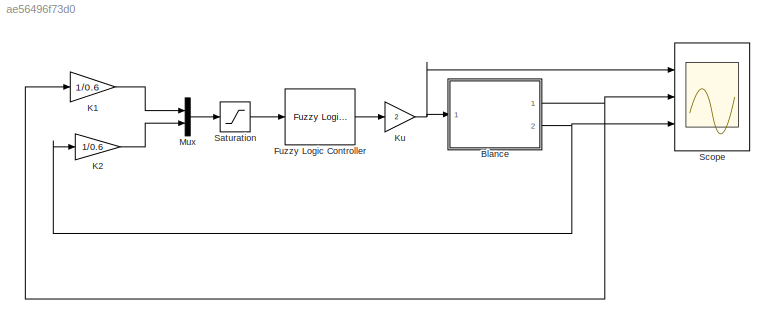
MODEL slx_ae56496f73d0
KIND model
CONFIG AbsTol = auto
CONFIG EnableMultiTasking = off
CONFIG FixedStep = 0.001
CONFIG MaxStep = auto
CONFIG MinStep = auto
CONFIG RelTol = 1e-3
CONFIG SampleTimeConstraint = Unconstrained
CONFIG Solver = ode5
CONFIG SolverName = ode5
CONFIG StartTime = 0.0
CONFIG StopTime = 3
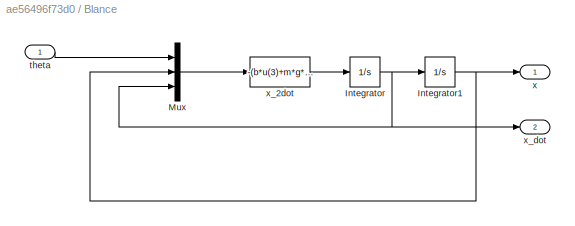
BLOCK [SubSystem] Blance 
  Ports = [1, 2]
  RequestExecContextInheritance = off
BLOCK [Integrator] Blance /Integrator
  InitialCondition = x_dotstart
  Ports = [1, 1]
BLOCK [Integrator] Blance /Integrator1
  InitialCondition = x_start
  Ports = [1, 1]
BLOCK [Mux] Blance /Mux
  DisplayOption = bar
  Inputs = 3
  Ports = [3, 1]
BLOCK [Inport] Blance /theta
  IconDisplay = Port number
BLOCK [Outport] Blance /x
  IconDisplay = Port number
BLOCK [Fcn] Blance /x_2dot
  Expr = -(b*u(3)+m*g*sin(u(1)))/((J/R^2)+m)
BLOCK [Outport] Blance /x_dot
  IconDisplay = Port number
  Port = 2
BLOCK [Reference] Fuzzy Logic Controller  REF=fuzblock/Fuzzy Logic   (lib defined in mdl_858b3b3e7478)
Controller
  Ports = [1, 1]
  SourceBlock = fuzblock/Fuzzy Logic \nController
  SourceProductBaseCode = FL
  SourceProductName = Fuzzy Logic Toolbox
  SourceType = Fuzzy Inference System
BLOCK [Gain] K1
  Gain = 1/0.6
  OutDataTypeStr = Inherit: Inherit via internal rule
  ParamDataTypeStr = Inherit: Inherit via internal rule
  SaturateOnIntegerOverflow = off
BLOCK [Gain] K2
  Gain = 1/0.6
  OutDataTypeStr = Inherit: Inherit via internal rule
  ParamDataTypeStr = Inherit: Inherit via internal rule
  SaturateOnIntegerOverflow = off
BLOCK [Gain] Ku 
  Gain = 2
  OutDataTypeStr = Inherit: Inherit via internal rule
  ParamDataTypeStr = Inherit: Inherit via internal rule
  SaturateOnIntegerOverflow = off
BLOCK [Mux] Mux
  DisplayOption = bar
  Inputs = 2
  Ports = [2, 1]
BLOCK [Saturate] Saturation
  InputPortMap = u0
  LowerLimit = -1
  Ports = [1, 1]
  UpperLimit = 1
BLOCK [Scope] Scope
  Floating = off
  NumInputPorts = 3
  Ports = [3]
  ScopeSpecificationString = Simulink.scopes.TimeScopeBlockCfg('CurrentConfiguration', extmgr.ConfigurationSet(extmgr.Configuration('Core','General UI',true,'FigureColor',[1 1 1]),extmgr.Configuration('Core','Source UI',true),extmgr.Configuration('Sources','WiredSimulink',true),extmgr.Configuration('Visuals','Time Domain',true,'SerializedDisplays',{struct('MinYLimReal','-1.41472','MaxYLimReal','2.37941','YLabelReal','','MinYL...<+2968ch>
NET Blance /Integrator1:1 -> Blance /Mux:2, Blance /x:1
NET Blance /Integrator:1 -> Blance /Integrator1:1, Blance /Mux:3, Blance /x_dot:1
LINE Blance /Mux:1 -> Blance /x_2dot:1
LINE Blance /theta:1 -> Blance /Mux:1
LINE Blance /x_2dot:1 -> Blance /Integrator:1
NET Blance :1 -> K1:1, Scope:2
NET Blance :2 -> K2:1, Scope:3
LINE Fuzzy Logic Controller:1 -> Ku :1
LINE K1:1 -> Mux:1
LINE K2:1 -> Mux:2
NET Ku :1 -> Blance :1, Scope:1
LINE Mux:1 -> Saturation:1
LINE Saturation:1 -> Fuzzy Logic Controller:1
note: NET lines group one-source signal fan-out (src -> all destinations, sorted); 1:1 wires keep LINE
